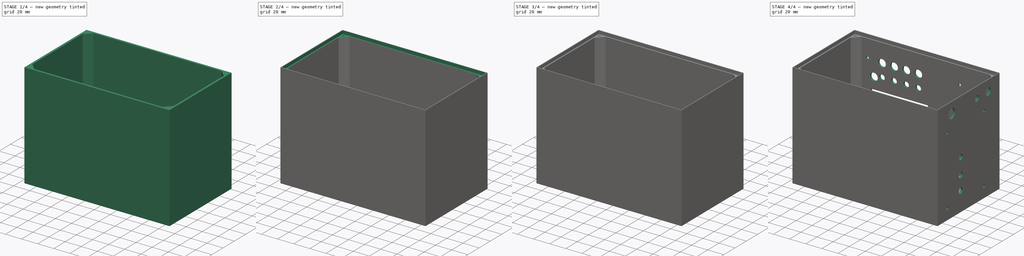
[diagram: build sequence overview — one tinted view per stage of 4, left to right]
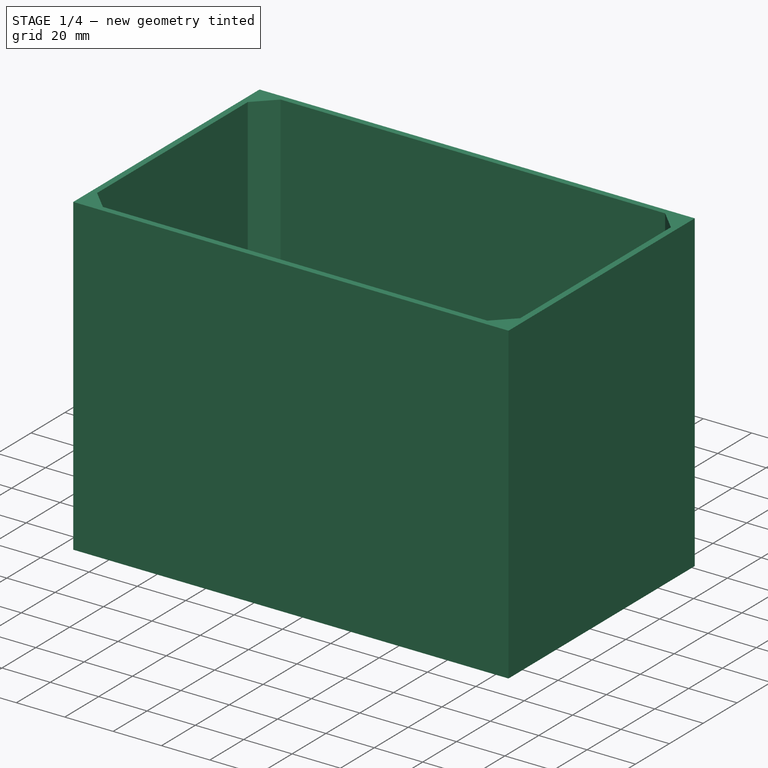
[diagram: stage 1 of 4 — iso view after this stage's code; geometry added in this stage tinted green]
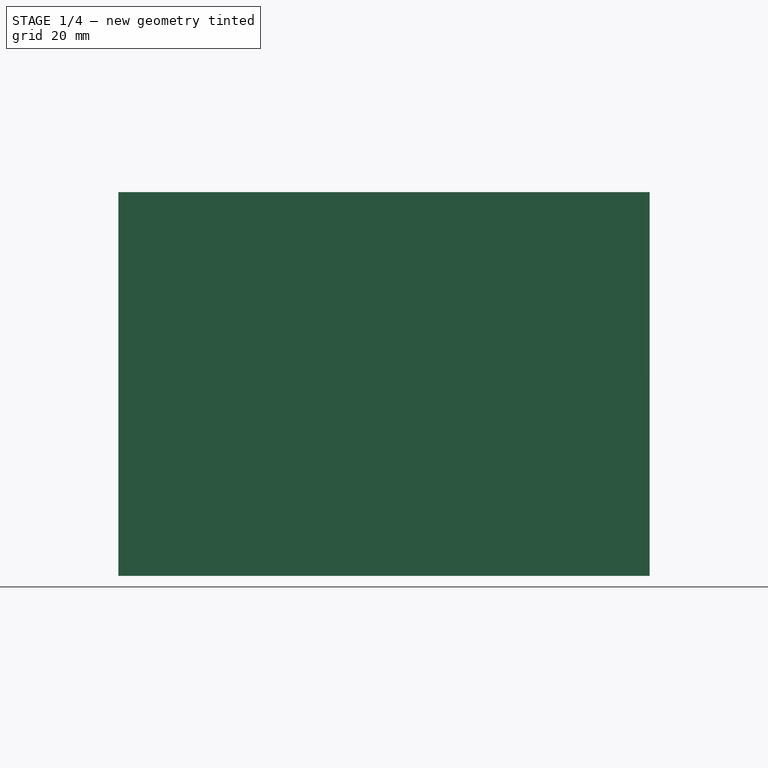
[diagram: stage 1 of 4 — front view after this stage's code; geometry added in this stage tinted green]
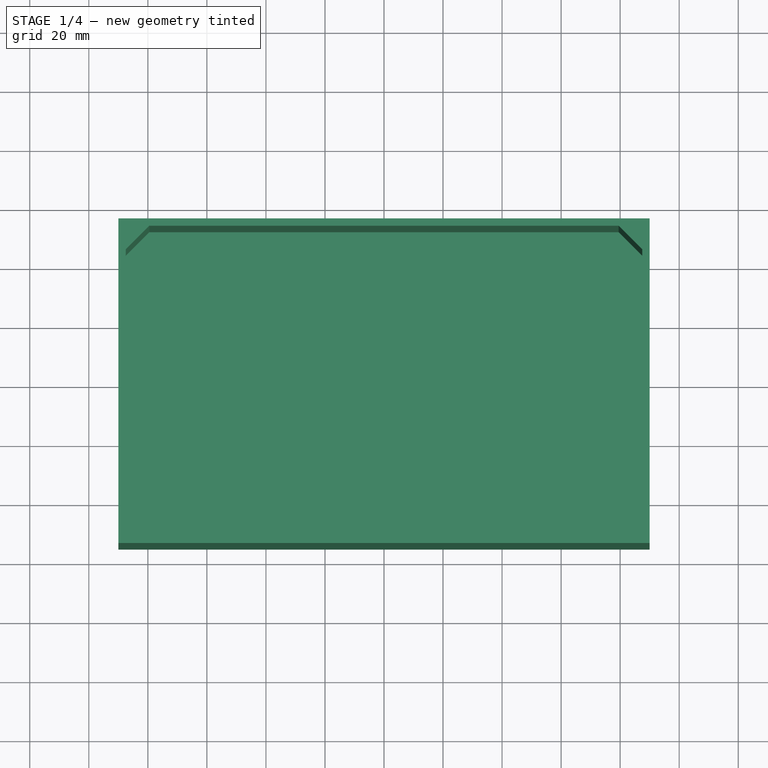
[diagram: stage 1 of 4 — top view after this stage's code; geometry added in this stage tinted green]
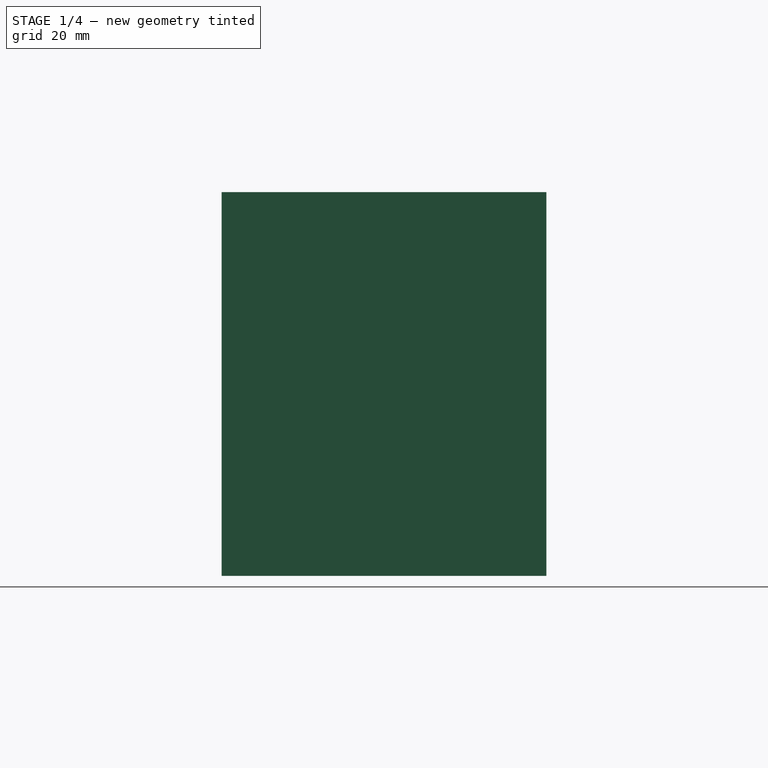
[diagram: stage 1 of 4 — right view after this stage's code; geometry added in this stage tinted green]
FCSTD DOCUMENT  (FreeCAD 0.21R33771 (Git))
Label: Morsomat
License: All rights reserved
LicenseURL: http://en.wikipedia.org/wiki/All_rights_reserved
objects: Sketcher::SketchObject×10, PartDesign::Pocket×6, PartDesign::Hole×2, PartDesign::Pad×1, PartDesign::Thickness×1, PartDesign::Chamfer×1, PartDesign::Fillet×1, PartDesign::Body×1
note: 35 computed .brp shape members not serialized (recipe doc carries the construction recipe); baked Part::Feature solids carry a one-line shape summary decoded from their .brp

FEATURE [Sketcher::SketchObject] Sketch
  FullyConstrained = true
  MapMode = 5
  Support = -> [XY_Plane]
  sketch-geometry (4):
    g0: LineSegment StartX=-90 StartY=55 StartZ=0 EndX=90 EndY=55 EndZ=0
    g1: LineSegment StartX=90 StartY=55 StartZ=0 EndX=90 EndY=-55 EndZ=0
    g2: LineSegment StartX=90 StartY=-55 StartZ=0 EndX=-90 EndY=-55 EndZ=0
    g3: LineSegment StartX=-90 StartY=-55 StartZ=0 EndX=-90 EndY=55 EndZ=0
  constraints (11):
    c: Coincident(g0,g1)
    c: Coincident(g1,g2)
    c: Coincident(g2,g3)
    c: Coincident(g3,g0)
    c: Horizontal(g0)
    c: Horizontal(g2)
    c: Vertical(g1)
    c: Vertical(g3)
    c: Symmetric(g2,g0,g-1)
    c: DistanceX(g0,g0) = 180
    c: DistanceY(g1,g1) = 110
FEATURE [PartDesign::Pad] Pad
  Direction = (0,0,1)
  Length = 130
  Length2 = 10
  Profile = -> Sketch
  ReferenceAxis = -> Sketch [N_Axis]
  Refine = true
  Type = 0
FEATURE [PartDesign::Thickness] Thickness
  Base = -> Pad [Face6]
  BaseFeature = -> Pad
  Intersection = false
  Join = 1
  Mode = 0
  Refine = true
  Reversed = true
  SupportTransform = false
  Value = 2.5
FEATURE [PartDesign::Chamfer] Chamfer
  Angle = 45
  Base = -> Thickness [Edge17,Edge22,Edge18,Edge20]
  BaseFeature = -> Thickness
  ChamferType = 0
  FlipDirection = false
  Refine = true
  Size = 8
  Size2 = 1
  SupportTransform = false
  UseAllEdges = false
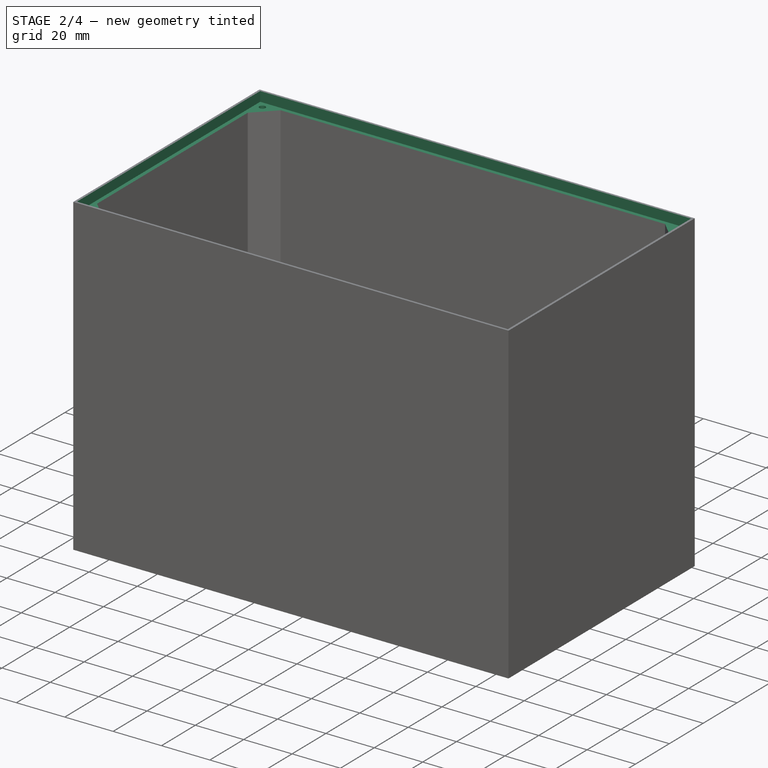
[diagram: stage 2 of 4 — iso view after this stage's code; geometry added in this stage tinted green]
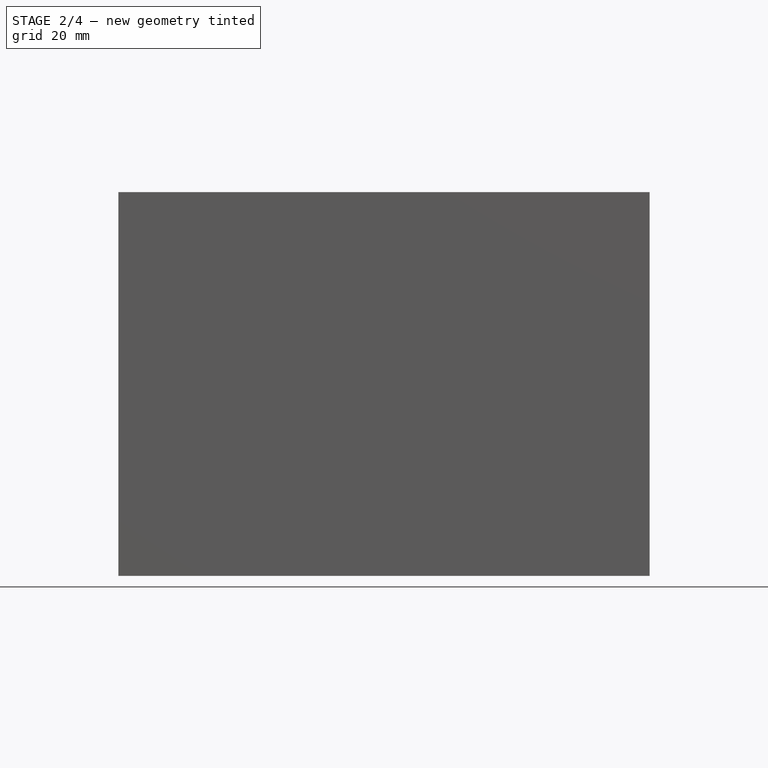
[diagram: stage 2 of 4 — front view after this stage's code; geometry added in this stage tinted green]
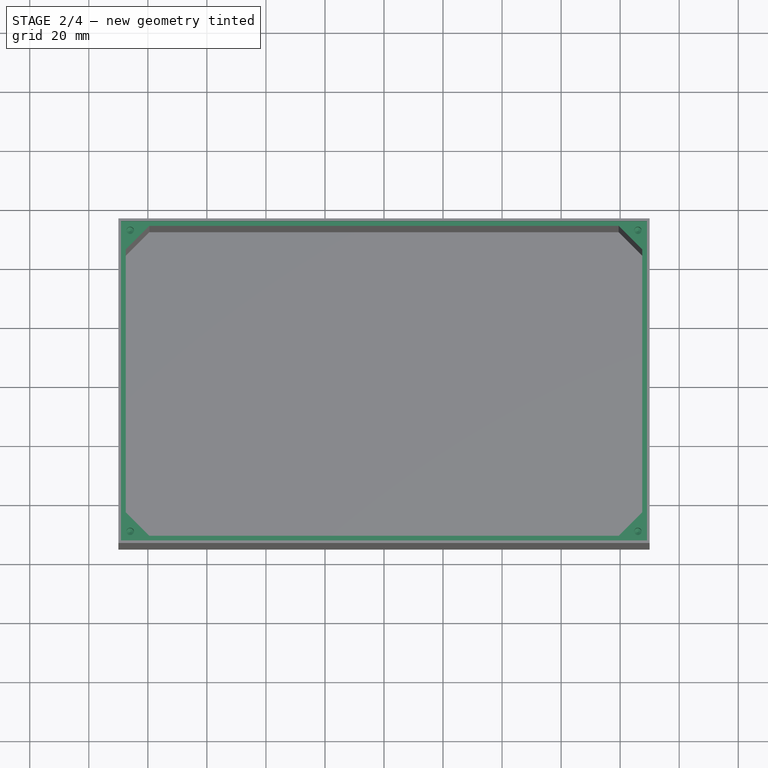
[diagram: stage 2 of 4 — top view after this stage's code; geometry added in this stage tinted green]
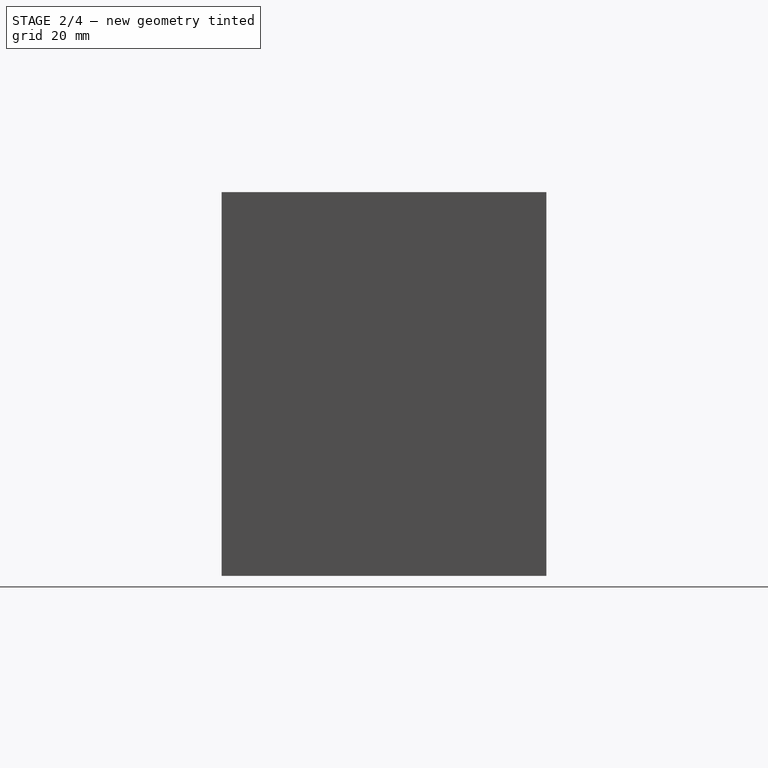
[diagram: stage 2 of 4 — right view after this stage's code; geometry added in this stage tinted green]
FEATURE [Sketcher::SketchObject] Sketch001
  ExternalGeometry = -> [Chamfer]
  FullyConstrained = true
  MapMode = 5
  Placement = pos=(0,0,130) rot=(0,0,1;0rad)
  Support = -> [Chamfer]
  sketch-geometry (4):
    g0: Circle CenterX=-86 CenterY=51 CenterZ=0 NormalX=0 NormalY=0 NormalZ=1 AngleXU=0 Radius=1.5
    g1: Circle CenterX=86 CenterY=51 CenterZ=0 NormalX=0 NormalY=0 NormalZ=1 AngleXU=0 Radius=1.5
    g2: Circle CenterX=86 CenterY=-51 CenterZ=0 NormalX=0 NormalY=0 NormalZ=1 AngleXU=0 Radius=1.5
    g3: Circle CenterX=-86 CenterY=-51 CenterZ=0 NormalX=0 NormalY=0 NormalZ=1 AngleXU=0 Radius=1.5
  constraints (12):
    c: Equal(g0,g1)
    c: Equal(g1,g2)
    c: Equal(g2,g3)
    c: Diameter(g3) = 3
    c: DistanceY(g1,g-4) = 4
    c: DistanceY(g-5,g2) = 4
    c: DistanceY(g-6,g3) = 4
    c: DistanceY(g0,g-6) = 4
    c: DistanceX(g-6,g0) = 4
    c: DistanceX(g1,g-4) = 4
    c: DistanceX(g2,g-5) = 4
    c: DistanceX(g-6,g3) = 4
FEATURE [PartDesign::Hole] Hole001
  BaseFeature = -> Chamfer
  CustomThreadClearance = 0
  Depth = 16
  DepthType = 0
  Diameter = 2.5
  DrillForDepth = false
  DrillPoint = 1
  DrillPointAngle = 118
  HoleCutCountersinkAngle = 90
  HoleCutCustomValues = false
  HoleCutDepth = 0
  HoleCutDiameter = 6.1
  HoleCutType = 0
  ModelThread = false
  Profile = -> Sketch001
  Refine = true
  Tapered = false
  TaperedAngle = 90
  ThreadClass = 0
  ThreadDepth = 16
  ThreadDepthType = 0
  ThreadDirection = 0
  ThreadFit = 0
  ThreadSize = 9
  ThreadType = 1
  Threaded = true
  UseCustomThreadClearance = false
FEATURE [PartDesign::Hole] Hole
  BaseFeature = -> Hole001
  CustomThreadClearance = 0
  Depth = 15
  DepthType = 0
  Diameter = 2.5
  DrillForDepth = false
  DrillPoint = 1
  DrillPointAngle = 118
  HoleCutCountersinkAngle = 90
  HoleCutCustomValues = false
  HoleCutDepth = 0
  HoleCutDiameter = 6.1
  HoleCutType = 0
  ModelThread = false
  Profile = -> Sketch001
  Refine = true
  Tapered = false
  TaperedAngle = 90
  ThreadClass = 0
  ThreadDepth = 15
  ThreadDepthType = 0
  ThreadDirection = 0
  ThreadFit = 0
  ThreadSize = 9
  ThreadType = 1
  Threaded = true
  UseCustomThreadClearance = false
FEATURE [Sketcher::SketchObject] Sketch002
  ExternalGeometry = -> [Hole]
  FullyConstrained = true
  MapMode = 5
  Placement = pos=(0,0,130) rot=(0,0,1;0rad)
  Support = -> [Hole]
  sketch-geometry (4):
    g0: LineSegment StartX=-89.1 StartY=54.1 StartZ=0 EndX=89.1 EndY=54.1 EndZ=0
    g1: LineSegment StartX=89.1 StartY=54.1 StartZ=0 EndX=89.1 EndY=-54.1 EndZ=0
    g2: LineSegment StartX=89.1 StartY=-54.1 StartZ=0 EndX=-89.1 EndY=-54.1 EndZ=0
    g3: LineSegment StartX=-89.1 StartY=-54.1 StartZ=0 EndX=-89.1 EndY=54.1 EndZ=0
  constraints (11):
    c: Coincident(g0,g1)
    c: Coincident(g1,g2)
    c: Coincident(g2,g3)
    c: Coincident(g3,g0)
    c: Horizontal(g0)
    c: Horizontal(g2)
    c: Vertical(g1)
    c: Vertical(g3)
    c: Symmetric(g0,g2,g-1)
    c: DistanceX(g0,g-4) = 0.9
    c: DistanceY(g0,g-6) = 0.9
FEATURE [PartDesign::Pocket] Pocket
  BaseFeature = -> Hole
  Direction = (0,0,-1)
  Length = 4
  Length2 = 5
  Profile = -> Sketch002
  ReferenceAxis = -> Sketch002 [N_Axis]
  Refine = true
  Type = 0
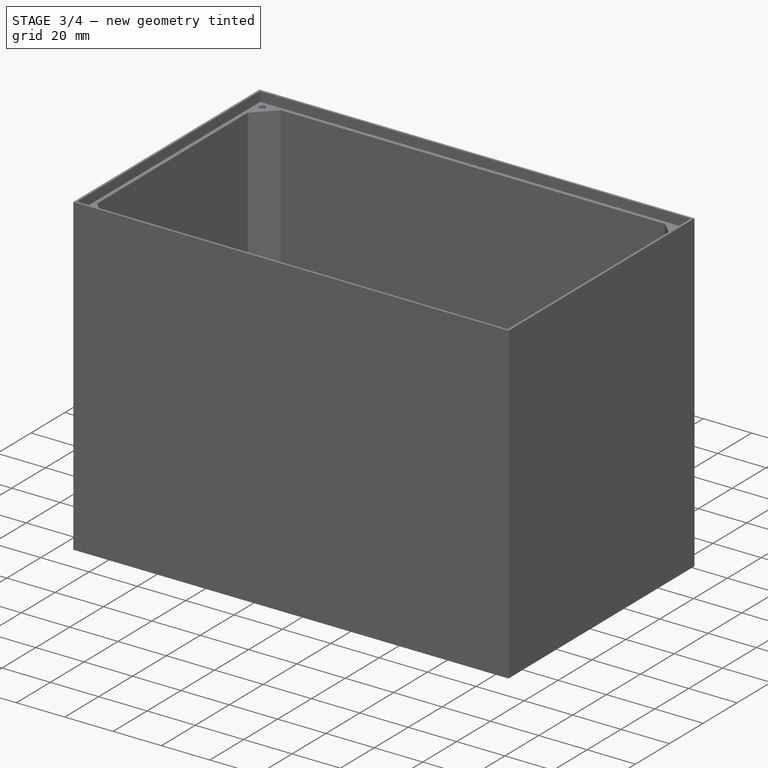
[diagram: stage 3 of 4 — iso view after this stage's code; geometry added in this stage tinted green]
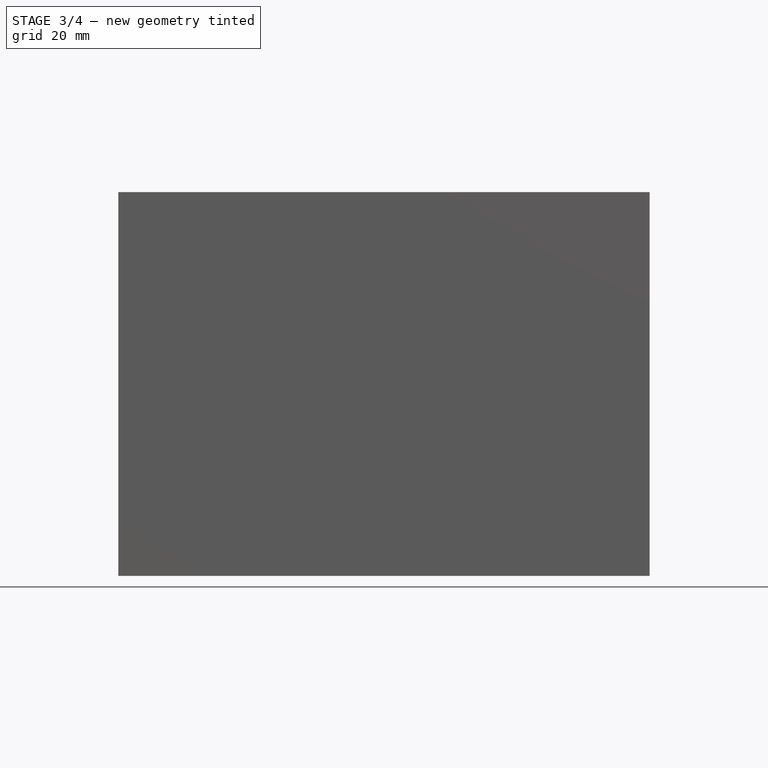
[diagram: stage 3 of 4 — front view after this stage's code; geometry added in this stage tinted green]
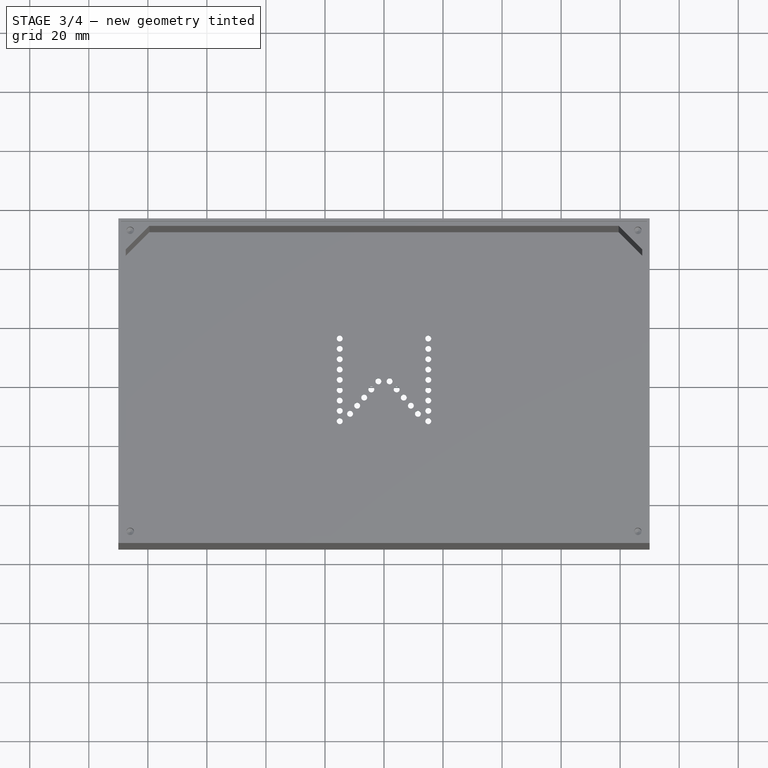
[diagram: stage 3 of 4 — top view after this stage's code; geometry added in this stage tinted green]
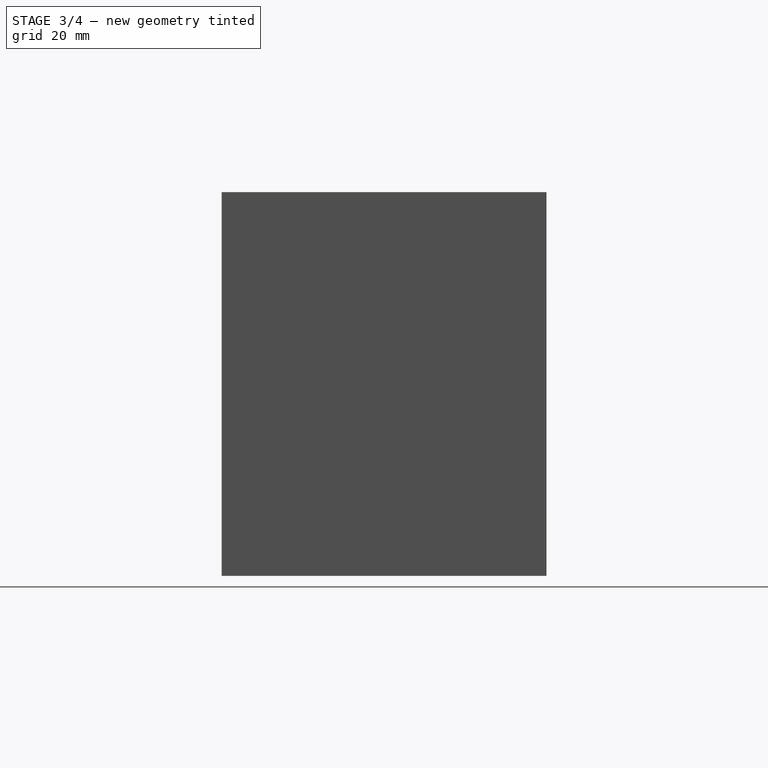
[diagram: stage 3 of 4 — right view after this stage's code; geometry added in this stage tinted green]
FEATURE [PartDesign::Fillet] Fillet
  Base = -> Pocket [Edge66,Edge62,Edge64,Edge61]
  BaseFeature = -> Pocket
  Radius = 0.15
  Refine = true
  SupportTransform = false
  UseAllEdges = false
FEATURE [Sketcher::SketchObject] Sketch003
  ExternalGeometry = -> [Fillet]
  FullyConstrained = true
  MapMode = 5
  Placement = pos=(0,0,0) rot=(1,0,0;3.14159rad)
  Support = -> [Fillet]
  sketch-geometry (13):
    g0: LineSegment StartX=1.8e-15 StartY=0 StartZ=0 EndX=12.5 EndY=15 EndZ=0
    g1: LineSegment StartX=12.5 StartY=15 StartZ=0 EndX=17.5 EndY=15 EndZ=0
    g2: LineSegment StartX=17.5 StartY=15 StartZ=0 EndX=17.5 EndY=-20 EndZ=0
    g3: LineSegment StartX=17.5 StartY=-20 StartZ=0 EndX=12.5 EndY=-20 EndZ=0
    g4: LineSegment StartX=12.5 StartY=-20 StartZ=0 EndX=12.5 EndY=7 EndZ=0
    g5: LineSegment StartX=12.5 StartY=7 StartZ=0 EndX=2.5 EndY=-5 EndZ=0
    g6: LineSegment StartX=2.5 StartY=-5 StartZ=0 EndX=-2.5 EndY=-5 EndZ=0
    g7: LineSegment StartX=-2.5 StartY=-5 StartZ=0 EndX=-12.5 EndY=7 EndZ=0
    g8: LineSegment StartX=-12.5 StartY=7 StartZ=0 EndX=-12.5 EndY=-20 EndZ=0
    g9: LineSegment StartX=-12.5 StartY=-20 StartZ=0 EndX=-17.5 EndY=-20 EndZ=0
    g10: LineSegment StartX=-17.5 StartY=-20 StartZ=0 EndX=-17.5 EndY=15 EndZ=0
    g11: LineSegment StartX=-17.5 StartY=15 StartZ=0 EndX=-12.5 EndY=15 EndZ=0
    g12: LineSegment StartX=-12.5 StartY=15 StartZ=0 EndX=1.8e-15 EndY=0 EndZ=0
  constraints (38):
    c: Coincident(g-1,g0)
    c: Coincident(g0,g1)
    c: Horizontal(g1)
    c: Coincident(g1,g2)
    c: Vertical(g2)
    c: Coincident(g2,g3)
    c: Coincident(g3,g4)
    c: Vertical(g4)
    c: Coincident(g4,g5)
    c: Coincident(g5,g6)
    c: Horizontal(g6)
    c: Coincident(g6,g7)
    c: Coincident(g7,g8)
    c: Vertical(g8)
    c: Coincident(g8,g9)
    c: Horizontal(g9)
    c: Coincident(g9,g10)
    c: Vertical(g10)
    c: Coincident(g10,g11)
    c: Horizontal(g11)
    c: Coincident(g11,g12)
    c: Coincident(g12,g0)
    c: Equal(g6,g3)
    c: Equal(g1,g3)
    c: Equal(g1,g11)
    c: Equal(g11,g9)
    c: Equal(g0,g12)
    c: Equal(g7,g5)
    c: Horizontal(g3)
    c: Equal(g2,g10)
    c: Equal(g8,g4)
    c: Parallel(g0,g5)
    c: Parallel(g7,g12)
    c: Distance(g3) = 5
    c: Distance(g2) = 35
    c: DistanceY(g5,g0) = 5
    c: Distance(g11,g0) = 25
    c: DistanceY(g8,g0) = 20
FEATURE [PartDesign::Pocket] Pocket001
  BaseFeature = -> Fillet
  Direction = (0,0,1)
  Length = 1
  Length2 = 5
  Profile = -> Sketch003
  ReferenceAxis = -> Sketch003 [N_Axis]
  Refine = true
  Type = 0
FEATURE [Sketcher::SketchObject] Sketch004
  ExternalGeometry = -> [Pocket001]
  FullyConstrained = true
  MapMode = 5
  Placement = pos=(0,0,1) rot=(1,0,0;3.14159rad)
  Support = -> [Pocket001]
  sketch-geometry (28):
    g0: Circle CenterX=-15 CenterY=11.5 CenterZ=0 NormalX=0 NormalY=0 NormalZ=1 AngleXU=0 Radius=1
    g1: Circle CenterX=-11.5 CenterY=9 CenterZ=0 NormalX=0 NormalY=0 NormalZ=1 AngleXU=0 Radius=1
    g2: Circle CenterX=-9.1 CenterY=6.25 CenterZ=0 NormalX=0 NormalY=0 NormalZ=1 AngleXU=0 Radius=1
    g3: Circle CenterX=-15 CenterY=8 CenterZ=0 NormalX=0 NormalY=0 NormalZ=1 AngleXU=0 Radius=1
    g4: Circle CenterX=-15 CenterY=4.5 CenterZ=0 NormalX=0 NormalY=0 NormalZ=1 AngleXU=0 Radius=1
    g5: Circle CenterX=-15 CenterY=1 CenterZ=0 NormalX=0 NormalY=0 NormalZ=1 AngleXU=0 Radius=1
    g6: Circle CenterX=-15 CenterY=-2.5 CenterZ=0 NormalX=0 NormalY=0 NormalZ=1 AngleXU=0 Radius=1
    g7: Circle CenterX=-15 CenterY=-6 CenterZ=0 NormalX=0 NormalY=0 NormalZ=1 AngleXU=0 Radius=1
    g8: Circle CenterX=-15 CenterY=-9.5 CenterZ=0 NormalX=0 NormalY=0 NormalZ=1 AngleXU=0 Radius=1
    g9: Circle CenterX=-15 CenterY=-13 CenterZ=0 NormalX=0 NormalY=0 NormalZ=1 AngleXU=0 Radius=1
    g10: Circle CenterX=-15 CenterY=-16.5 CenterZ=0 NormalX=0 NormalY=0 NormalZ=1 AngleXU=0 Radius=1
    g11: Circle CenterX=-6.7 CenterY=3.5 CenterZ=0 NormalX=0 NormalY=0 NormalZ=1 AngleXU=0 Radius=1
    g12: Circle CenterX=-4.3 CenterY=0.75 CenterZ=0 NormalX=0 NormalY=0 NormalZ=1 AngleXU=0 Radius=1
    g13: Circle CenterX=-1.9 CenterY=-2 CenterZ=0 NormalX=0 NormalY=0 NormalZ=1 AngleXU=0 Radius=1
    g14: Circle CenterX=1.9 CenterY=-2 CenterZ=0 NormalX=0 NormalY=0 NormalZ=1 AngleXU=0 Radius=1
    g15: Circle CenterX=4.3 CenterY=0.75 CenterZ=0 NormalX=0 NormalY=0 NormalZ=1 AngleXU=0 Radius=1
    g16: Circle CenterX=6.7 CenterY=3.5 CenterZ=0 NormalX=0 NormalY=0 NormalZ=1 AngleXU=0 Radius=1
    g17: Circle CenterX=11.5 CenterY=9 CenterZ=0 NormalX=0 NormalY=0 NormalZ=1 AngleXU=0 Radius=1
    g18: Circle CenterX=15 CenterY=11.5 CenterZ=0 NormalX=0 NormalY=0 NormalZ=1 AngleXU=0 Radius=1
    g19: Circle CenterX=9.1 CenterY=6.25 CenterZ=0 NormalX=0 NormalY=0 NormalZ=1 AngleXU=0 Radius=1
    g20: Circle CenterX=15 CenterY=8 CenterZ=0 NormalX=0 NormalY=0 NormalZ=1 AngleXU=0 Radius=1
    g21: Circle CenterX=15 CenterY=4.5 CenterZ=0 NormalX=0 NormalY=0 NormalZ=1 AngleXU=0 Radius=1
    g22: Circle CenterX=15 CenterY=1 CenterZ=0 NormalX=0 NormalY=0 NormalZ=1 AngleXU=0 Radius=1
    g23: Circle CenterX=15 CenterY=-2.5 CenterZ=0 NormalX=0 NormalY=0 NormalZ=1 AngleXU=0 Radius=1
    g24: Circle CenterX=15 CenterY=-6 CenterZ=0 NormalX=0 NormalY=0 NormalZ=1 AngleXU=0 Radius=1
    g25: Circle CenterX=15 CenterY=-9.5 CenterZ=0 NormalX=0 NormalY=0 NormalZ=1 AngleXU=0 Radius=1
    g26: Circle CenterX=15 CenterY=-16.5 CenterZ=0 NormalX=0 NormalY=0 NormalZ=1 AngleXU=0 Radius=1
    g27: Circle CenterX=15 CenterY=-13 CenterZ=0 NormalX=0 NormalY=0 NormalZ=1 AngleXU=0 Radius=1
  constraints (70):
    c: Equal(g10,g9)
    c: Equal(g9,g8)
    c: Equal(g8,g7)
    c: Equal(g7,g6)
    c: Equal(g6,g5)
    c: Equal(g5,g4)
    c: Equal(g3,g0)
    c: Equal(g1,g0)
    c: Equal(g1,g2)
    c: Equal(g2,g11)
    c: Equal(g11,g12)
    c: Equal(g13,g14)
    c: Equal(g14,g15)
    c: Equal(g3,g4)
    c: Equal(g16,g15)
    c: Equal(g16,g17)
    c: Equal(g17,g18)
    c: Equal(g18,g19)
    c: Equal(g19,g20)
    c: Equal(g20,g21)
    c: Equal(g21,g22)
    c: Equal(g22,g23)
    c: Equal(g23,g24)
    c: Equal(g24,g25)
    c: Equal(g25,g26)
    c: Equal(g25,g27)
    c: Diameter(g26) = 2
    c: Symmetric(g10,g26,g-2)
    c: Symmetric(g27,g9,g-2)
    c: Symmetric(g25,g8,g-2)
    c: Symmetric(g24,g7,g-2)
    c: Symmetric(g23,g6,g-2)
    c: Symmetric(g22,g5,g-2)
    c: Symmetric(g21,g4,g-2)
    c: Symmetric(g20,g3,g-2)
    c: Symmetric(g18,g0,g-2)
    c: Symmetric(g1,g17,g-2)
    c: Symmetric(g2,g19,g-2)
    c: Symmetric(g11,g16,g-2)
    c: Symmetric(g12,g15,g-2)
    c: Symmetric(g13,g14,g-2)
    c: DistanceY(g-15,g10) = 3.5
    c: DistanceY(g10,g9) = 3.5
    c: DistanceY(g9,g8) = 3.5
    c: DistanceY(g8,g7) = 3.5
    c: DistanceY(g7,g6) = 3.5
    c: DistanceY(g6,g5) = 3.5
    c: DistanceY(g5,g4) = 3.5
    c: DistanceY(g4,g3) = 3.5
    c: DistanceY(g3,g0) = 3.5
    c: DistanceX(g-10,g26) = 2.5
    c: DistanceX(g-10,g27) = 2.5
    c: DistanceX(g-10,g25) = 2.5
    c: DistanceX(g-10,g24) = 2.5
    c: DistanceX(g-10,g23) = 2.5
    c: DistanceX(g-10,g22) = 2.5
    c: DistanceX(g21,g-8) = 2.5
    c: DistanceX(g20,g-8) = 2.5
    c: DistanceX(g18,g-8) = 2.5
    c: DistanceX(g-5,g1) = 1
    c: DistanceY(g1,g-5) = 6
    c: DistanceY(g2,g1) = 2.75
    c: DistanceY(g11,g2) = 2.75
    c: DistanceY(g12,g11) = 2.75
    c: DistanceY(g13,g12) = 2.75
    c: DistanceX(g1,g2) = 2.4
    c: DistanceX(g2,g11) = 2.4
    c: DistanceX(g11,g12) = 2.4
    c: DistanceX(g12,g13) = 2.4
    c: Equal(g12,g13)
FEATURE [PartDesign::Pocket] Pocket002
  BaseFeature = -> Pocket001
  Direction = (0,0,1)
  Length = 3
  Length2 = 5
  Profile = -> Sketch004
  ReferenceAxis = -> Sketch004 [N_Axis]
  Refine = true
  Type = 0
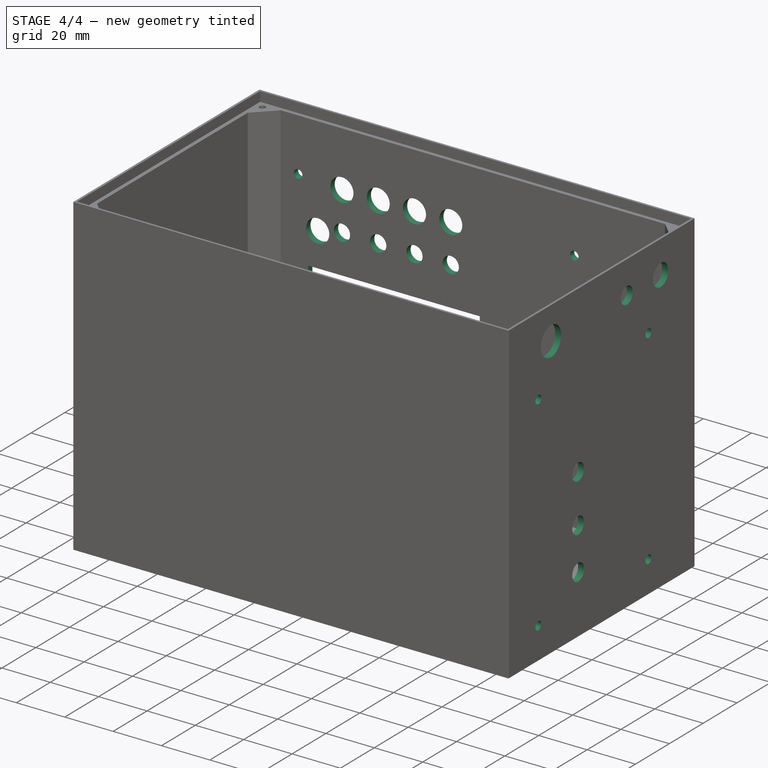
[diagram: stage 4 of 4 — iso view after this stage's code; geometry added in this stage tinted green]
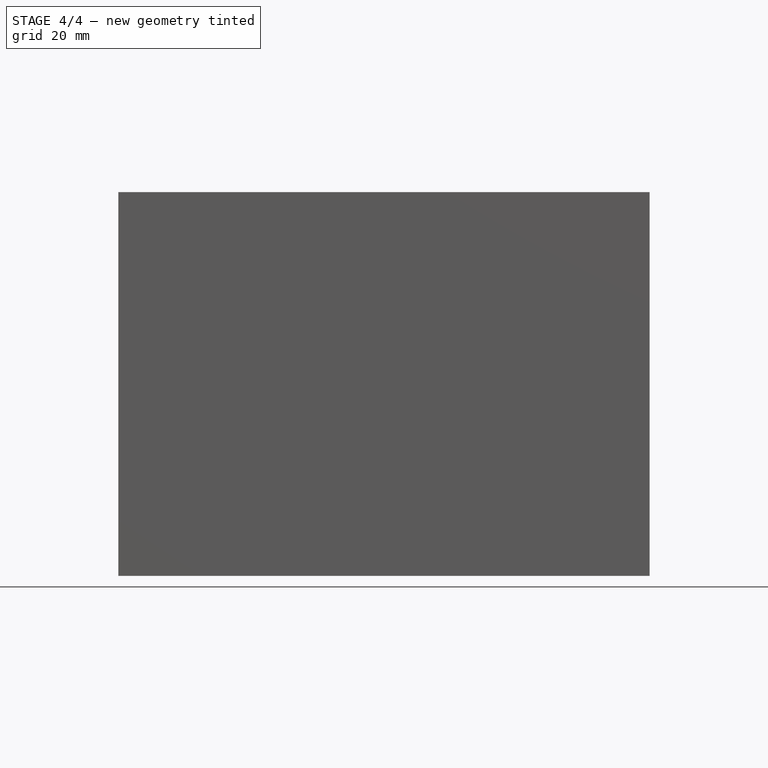
[diagram: stage 4 of 4 — front view after this stage's code; geometry added in this stage tinted green]
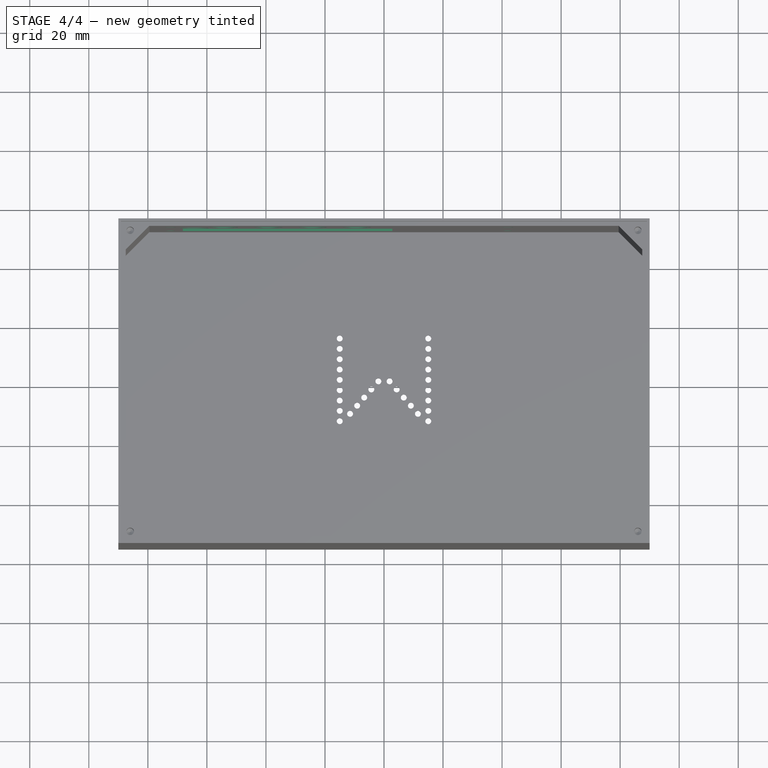
[diagram: stage 4 of 4 — top view after this stage's code; geometry added in this stage tinted green]
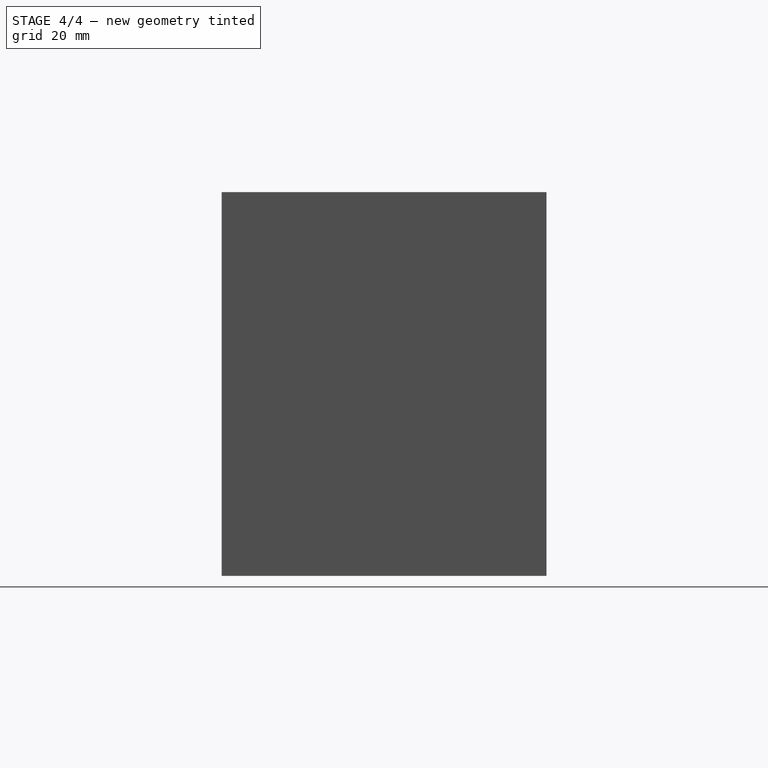
[diagram: stage 4 of 4 — right view after this stage's code; geometry added in this stage tinted green]
FEATURE [Sketcher::SketchObject] Sketch005
  ExternalGeometry = -> [Pocket002]
  FullyConstrained = true
  MapMode = 5
  Placement = pos=(90,0,0) rot=(0.57735,0.57735,0.57735;2.0944rad)
  Support = -> [Pocket002]
  sketch-geometry (3):
    g0: Circle CenterX=34.85 CenterY=116.5 CenterZ=0 NormalX=0 NormalY=0 NormalZ=1 AngleXU=0 Radius=4.5
    g1: Circle CenterX=14.85 CenterY=116.5 CenterZ=0 NormalX=0 NormalY=0 NormalZ=1 AngleXU=0 Radius=3.5
    g2: Circle CenterX=-29.85 CenterY=116.5 CenterZ=0 NormalX=0 NormalY=0 NormalZ=1 AngleXU=0 Radius=6
  constraints (9):
    c: Diameter(g2) = 12
    c: Diameter(g1) = 7
    c: Diameter(g0) = 9
    c: DistanceY(g2,g-4) = 13.5
    c: DistanceY(g1,g-4) = 13.5
    c: DistanceY(g0,g-5) = 13.5
    c: DistanceX(g0,g-5) = 20
    c: DistanceX(g1,g0) = 20
    c: DistanceX(g-4,g2) = 25
FEATURE [PartDesign::Pocket] Pocket003
  BaseFeature = -> Pocket002
  Direction = (-1,0,0)
  Length = 5
  Length2 = 5
  Profile = -> Sketch005
  ReferenceAxis = -> Sketch005 [N_Axis]
  Refine = true
  Type = 0
FEATURE [Sketcher::SketchObject] Sketch006
  ExternalGeometry = -> [Pocket003]
  FullyConstrained = true
  MapMode = 5
  Placement = pos=(90,0,0) rot=(0.57735,0.57735,0.57735;2.0944rad)
  Support = -> [Pocket003]
  sketch-geometry (4):
    g0: LineSegment StartX=30.15 StartY=10 StartZ=0 EndX=-39.85 EndY=10 EndZ=0
    g1: LineSegment StartX=-39.85 StartY=10 StartZ=0 EndX=-39.85 EndY=100.5 EndZ=0
    g2: LineSegment StartX=-39.85 StartY=100.5 StartZ=0 EndX=30.15 EndY=100.5 EndZ=0
    g3: LineSegment StartX=30.15 StartY=100.5 StartZ=0 EndX=30.15 EndY=10 EndZ=0
  constraints (12):
    c: Coincident(g0,g1)
    c: Coincident(g1,g2)
    c: Coincident(g2,g3)
    c: Coincident(g3,g0)
    c: Horizontal(g0)
    c: Horizontal(g2)
    c: Vertical(g1)
    c: Vertical(g3)
    c: DistanceY(g1,g1) = 90.5
    c: DistanceX(g0,g0) = 70
    c: DistanceX(g-6,g0) = 15
    c: DistanceY(g-6,g0) = 10
FEATURE [Sketcher::SketchObject] Sketch007
  ExternalGeometry = -> [Sketch006]
  FullyConstrained = true
  MapMode = 5
  Placement = pos=(90,0,0) rot=(0.57735,0.57735,0.57735;2.0944rad)
  Support = -> [Pocket003]
  sketch-geometry (7):
    g0: Circle CenterX=27.65 CenterY=13 CenterZ=0 NormalX=0 NormalY=0 NormalZ=1 AngleXU=0 Radius=1.75
    g1: Circle CenterX=27.65 CenterY=97.5 CenterZ=0 NormalX=0 NormalY=0 NormalZ=1 AngleXU=0 Radius=1.75
    g2: Circle CenterX=-37.35 CenterY=97.5 CenterZ=0 NormalX=0 NormalY=0 NormalZ=1 AngleXU=0 Radius=1.75
    g3: Circle CenterX=-37.35 CenterY=13 CenterZ=0 NormalX=0 NormalY=0 NormalZ=1 AngleXU=0 Radius=1.75
    g4: Circle CenterX=-13.85 CenterY=24 CenterZ=0 NormalX=0 NormalY=0 NormalZ=1 AngleXU=0 Radius=3.5
    g5: Circle CenterX=-13.85 CenterY=41.5 CenterZ=0 NormalX=0 NormalY=0 NormalZ=1 AngleXU=0 Radius=3.5
    g6: Circle CenterX=-13.85 CenterY=61.5 CenterZ=0 NormalX=0 NormalY=0 NormalZ=1 AngleXU=0 Radius=3.5
  constraints (21):
    c: Equal(g3,g2)
    c: Equal(g2,g1)
    c: Equal(g1,g0)
    c: Diameter(g3) = 3.5
    c: DistanceX(g-4,g3) = 2.5
    c: DistanceX(g-5,g2) = 2.5
    c: DistanceX(g1,g-6) = 2.5
    c: DistanceX(g0,g-6) = 2.5
    c: DistanceY(g-4,g3) = 3
    c: DistanceY(g2,g-5) = 3
    c: DistanceY(g1,g-6) = 3
    c: DistanceY(g-6,g0) = 3
    c: Equal(g4,g5)
    c: Equal(g5,g6)
    c: Diameter(g4) = 7
    c: DistanceX(g-4,g4) = 26
    c: DistanceX(g-4,g5) = 26
    c: DistanceX(g-4,g6) = 26
    c: DistanceY(g-4,g4) = 14
    c: DistanceY(g4,g5) = 17.5
    c: DistanceY(g5,g6) = 20
FEATURE [PartDesign::Pocket] Pocket004
  BaseFeature = -> Pocket003
  Direction = (-1,0,0)
  Length = 5
  Length2 = 5
  Profile = -> Sketch007
  ReferenceAxis = -> Sketch007 [N_Axis]
  Refine = true
  Type = 0
FEATURE [Sketcher::SketchObject] Sketch008
  ExternalGeometry = -> [Pocket004]
  FullyConstrained = true
  MapMode = 5
  Placement = pos=(0,55,0) rot=(0,0.707107,0.707107;3.14159rad)
  Support = -> [Pocket004]
  sketch-geometry (4):
    g0: LineSegment StartX=75.15 StartY=27 StartZ=0 EndX=-44.85 EndY=27 EndZ=0
    g1: LineSegment StartX=-44.85 StartY=27 StartZ=0 EndX=-44.85 EndY=107 EndZ=0
    g2: LineSegment StartX=-44.85 StartY=107 StartZ=0 EndX=75.15 EndY=107 EndZ=0
    g3: LineSegment StartX=75.15 StartY=107 StartZ=0 EndX=75.15 EndY=27 EndZ=0
  constraints (12):
    c: Coincident(g0,g1)
    c: Coincident(g1,g2)
    c: Coincident(g2,g3)
    c: Coincident(g3,g0)
    c: Horizontal(g0)
    c: Horizontal(g2)
    c: Vertical(g1)
    c: Vertical(g3)
    c: DistanceY(g1,g1) = 80
    c: DistanceX(g0,g0) = 120
    c: DistanceX(g-6,g0) = 45
    c: DistanceY(g-6,g0) = 27
FEATURE [Sketcher::SketchObject] Sketch009
  ExternalGeometry = -> [Sketch008]
  FullyConstrained = true
  MapMode = 5
  Placement = pos=(0,55,0) rot=(0,0.707107,0.707107;3.14159rad)
  Support = -> [Pocket004]
  sketch-geometry (17):
    g0: Circle CenterX=72.25 CenterY=29.9 CenterZ=0 NormalX=0 NormalY=0 NormalZ=1 AngleXU=0 Radius=1.75
    g1: Circle CenterX=-41.95 CenterY=29.9 CenterZ=0 NormalX=0 NormalY=0 NormalZ=1 AngleXU=0 Radius=1.75
    g2: Circle CenterX=-41.95 CenterY=104.1 CenterZ=0 NormalX=0 NormalY=0 NormalZ=1 AngleXU=0 Radius=1.75
    g3: Circle CenterX=72.25 CenterY=104.1 CenterZ=0 NormalX=0 NormalY=0 NormalZ=1 AngleXU=0 Radius=1.75
    g4: LineSegment StartX=68.15 StartY=27 StartZ=0 EndX=-2.85 EndY=27 EndZ=0
    g5: LineSegment StartX=-2.85 StartY=27 StartZ=0 EndX=-2.85 EndY=71 EndZ=0
    g6: LineSegment StartX=-2.85 StartY=71 StartZ=0 EndX=68.15 EndY=71 EndZ=0
    g7: LineSegment StartX=68.15 StartY=71 StartZ=0 EndX=68.15 EndY=27 EndZ=0
    g8: Circle CenterX=54.15 CenterY=103 CenterZ=0 NormalX=0 NormalY=0 NormalZ=1 AngleXU=0 Radius=4.75
    g9: Circle CenterX=39.15 CenterY=103 CenterZ=0 NormalX=0 NormalY=0 NormalZ=1 AngleXU=0 Radius=4.75
    g10: Circle CenterX=24.15 CenterY=103 CenterZ=0 NormalX=0 NormalY=0 NormalZ=1 AngleXU=0 Radius=4.75
    g11: Circle CenterX=9.15 CenterY=103 CenterZ=0 NormalX=0 NormalY=0 NormalZ=1 AngleXU=0 Radius=4.75
    g12: Circle CenterX=54.15 CenterY=87 CenterZ=0 NormalX=0 NormalY=0 NormalZ=1 AngleXU=0 Radius=3.35
    g13: Circle CenterX=39.15 CenterY=87 CenterZ=0 NormalX=0 NormalY=0 NormalZ=1 AngleXU=0 Radius=3.35
    g14: Circle CenterX=24.15 CenterY=87 CenterZ=0 NormalX=0 NormalY=0 NormalZ=1 AngleXU=0 Radius=3.35
    g15: Circle CenterX=9.15 CenterY=87 CenterZ=0 NormalX=0 NormalY=0 NormalZ=1 AngleXU=0 Radius=3.35
    g16: Circle CenterX=64.15 CenterY=85 CenterZ=0 NormalX=0 NormalY=0 NormalZ=1 AngleXU=0 Radius=4.75
  constraints (51):
    c: Equal(g0,g1)
    c: Equal(g1,g2)
    c: Equal(g2,g3)
    c: Diameter(g1) = 3.5
    c: DistanceX(g-4,g1) = 2.9
    c: DistanceX(g-5,g2) = 2.9
    c: DistanceX(g3,g-6) = 2.9
    c: DistanceX(g0,g-6) = 2.9
    c: DistanceY(g-6,g0) = 2.9
    c: DistanceY(g-4,g1) = 2.9
    c: DistanceY(g2,g-5) = 2.9
    c: DistanceY(g3,g-6) = 2.9
    c: Coincident(g4,g5)
    c: Coincident(g5,g6)
    c: Coincident(g6,g7)
    c: Coincident(g7,g4)
    c: Horizontal(g4)
    c: Horizontal(g6)
    c: Vertical(g5)
    c: Vertical(g7)
    c: DistanceY(g-6,g4) = 0
    c: DistanceX(g4,g-6) = 7
    c: DistanceX(g4,g4) = 71
    c: DistanceY(g5,g5) = 44
    c: Equal(g11,g10)
    c: Equal(g10,g9)
    c: Equal(g9,g8)
    c: Diameter(g11) = 9.5
    c: DistanceY(g8,g-6) = 4
    c: DistanceY(g9,g-6) = 4
    c: DistanceY(g10,g-6) = 4
    c: DistanceY(g11,g-6) = 4
    c: Equal(g15,g14)
    c: Equal(g14,g13)
    c: Equal(g13,g12)
    c: Diameter(g15) = 6.7
    c: DistanceY(g15,g11) = 16
    c: DistanceY(g14,g10) = 16
    c: DistanceY(g13,g9) = 16
    c: DistanceY(g12,g8) = 16
    c: DistanceX(g9,g8) = 15
    c: DistanceX(g10,g9) = 15
    c: DistanceX(g11,g10) = 15
    c: DistanceX(g13,g12) = 15
    c: DistanceX(g14,g13) = 15
    c: DistanceX(g15,g14) = 15
    c: DistanceX(g8,g-6) = 21
    c: DistanceX(g12,g-6) = 21
    c: Equal(g16,g8)
    c: DistanceX(g12,g16) = 10
    c: DistanceY(g16,g-6) = 22
FEATURE [PartDesign::Pocket] Pocket005
  BaseFeature = -> Pocket004
  Direction = (0,-1,2e-16)
  Length = 5
  Length2 = 5
  Profile = -> Sketch009
  ReferenceAxis = -> Sketch009 [N_Axis]
  Refine = true
  Type = 0
FEATURE [PartDesign::Body] Body
  Group = -> [Sketch,Pad,Thickness,Chamfer,Sketch001,Hole001,Hole,Sketch002,Pocket,Fillet,Sketch003,Pocket001,Sketch004,Pocket002,Sketch005,Pocket003,Sketch006,Sketch007,Pocket004,Sketch008,Sketch009,Pocket005]
  Origin = -> Origin
  Tip = -> Pocket005
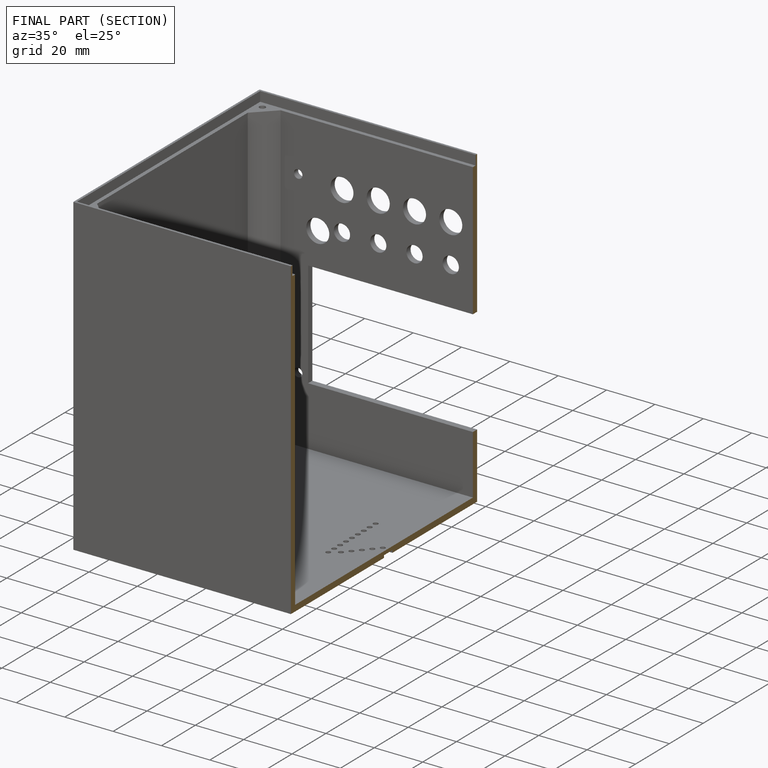
[diagram: finished part — half-section view (interior)]
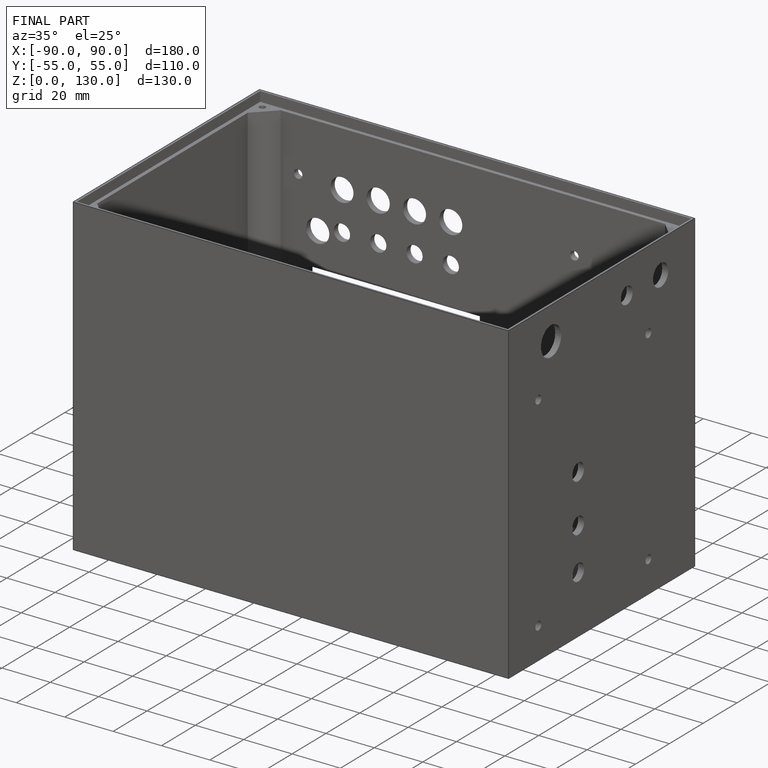
[diagram: finished part — iso view with bounding-box wireframe]
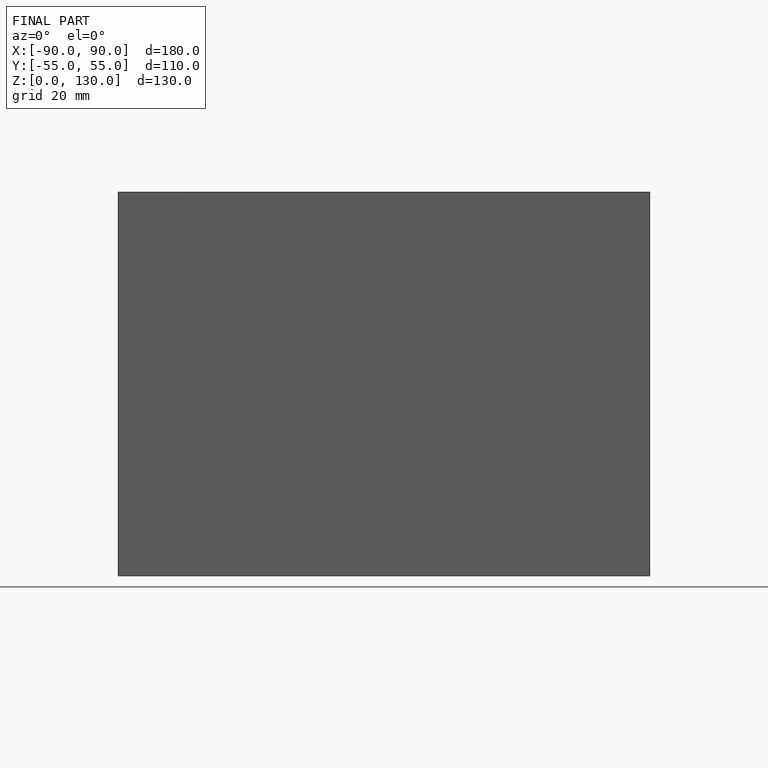
[diagram: finished part — front view with bounding-box wireframe]
